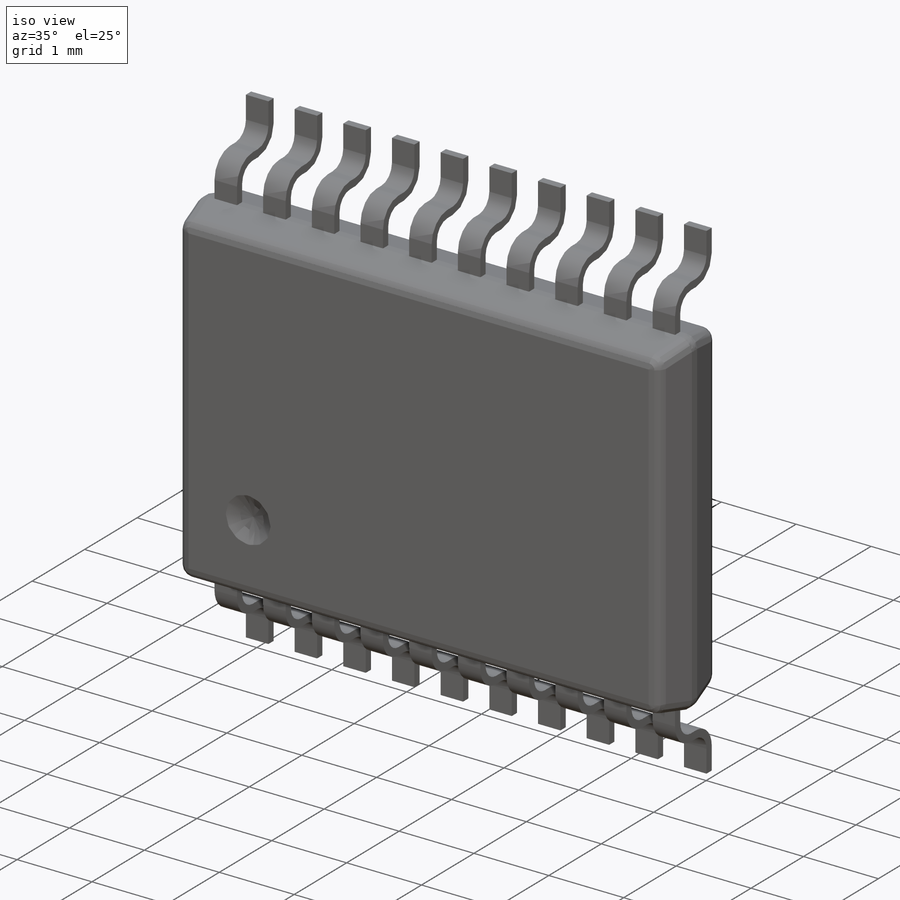
[diagram: iso view]
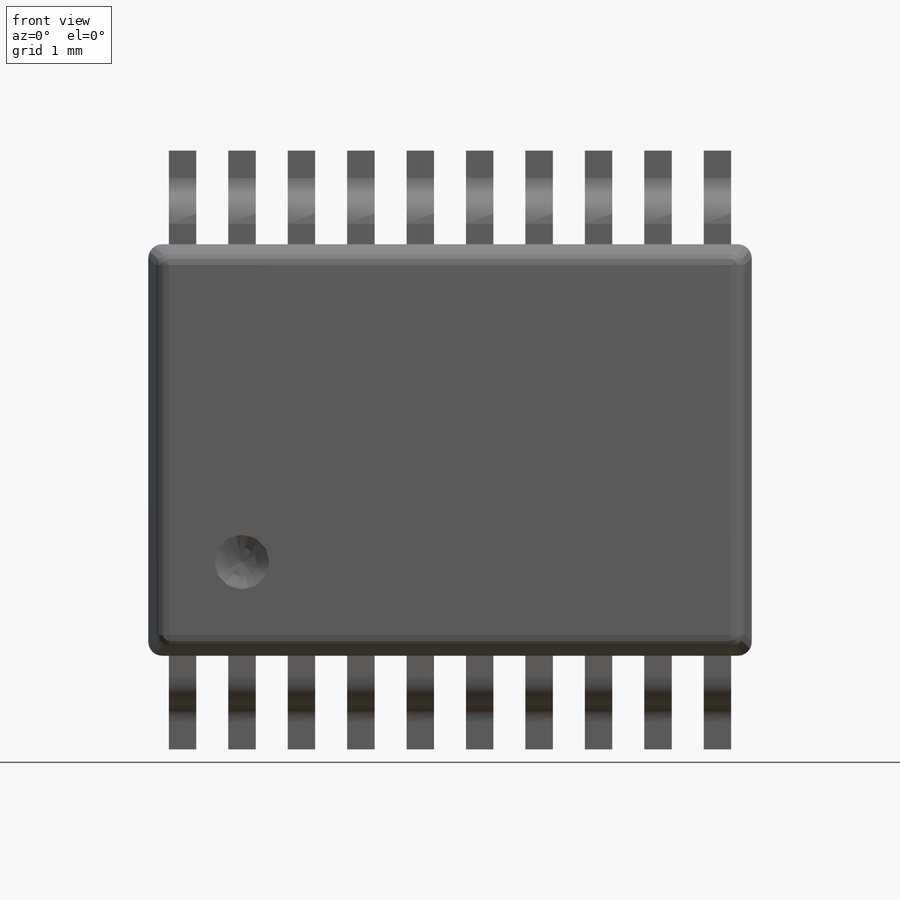
[diagram: front view]
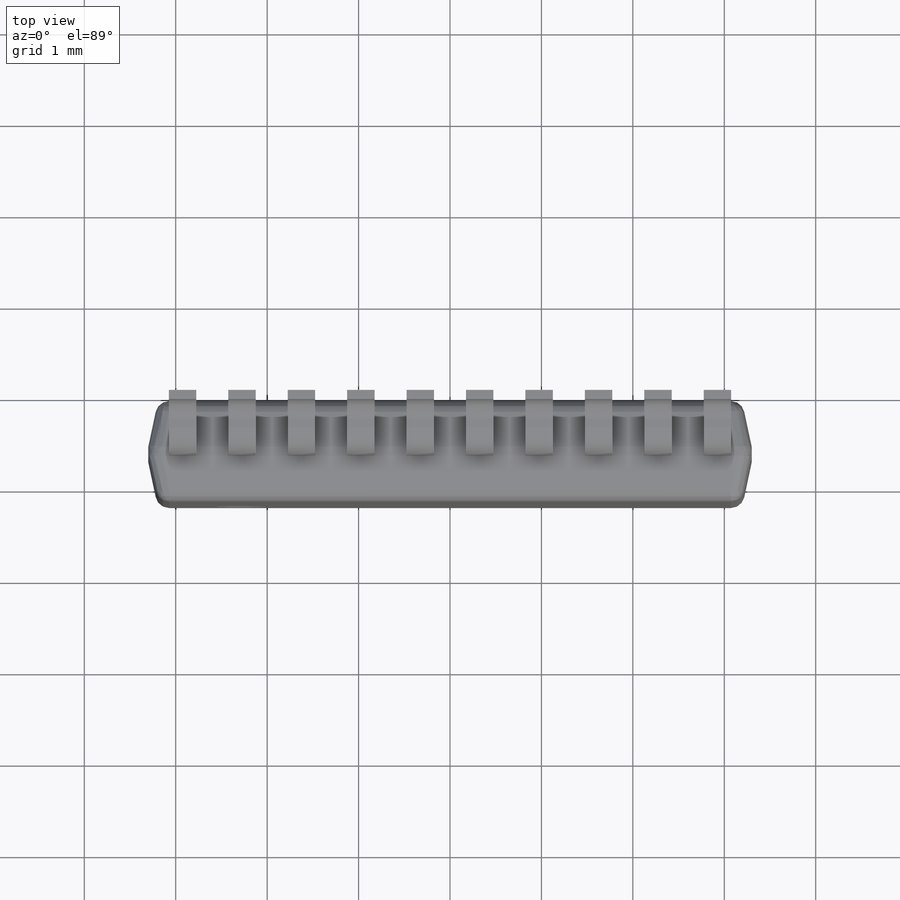
[diagram: top view]
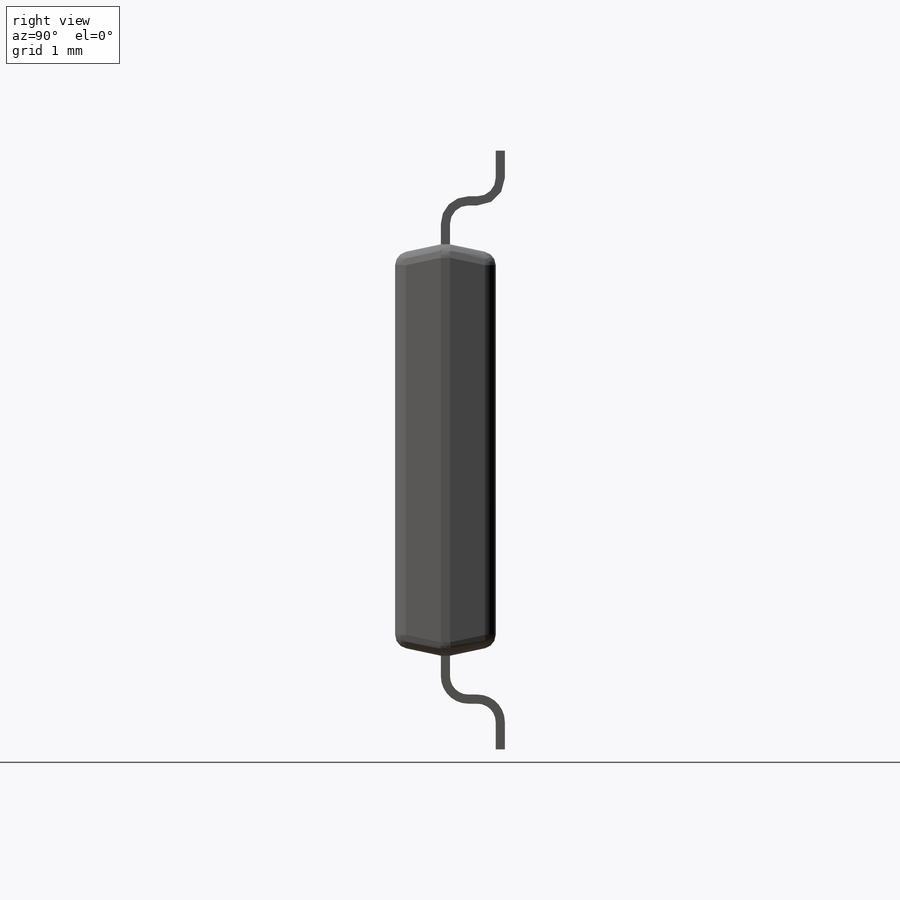
[diagram: right view]
SOLIDWORKS PART (.sldprt)
format: sldprt  version: not decoded by parser v0  size: 513,536 bytes
history: native  units: mm
features: sketch x4, extrude x2, chamfer x2, cut_extrude x2, material x1, plane x1, fillet x1, mirror x1, dome x1 (+16 scaffold rows collapsed)
feature tree (31):
  scaffold x16  (default folders/planes/origin — collapsed)
  material  "Material <not specified>"
  plane  "Plane1"  Offset=0.1mm
  sketch  "Sketch1"
  extrude  "Extrude2"  Depth=1.1mm
  chamfer  "Chamfer2"  Distance=0.5mm Angle=12deg
  chamfer  "Chamfer3"  Distance=0.5mm Angle=12deg
  fillet  "Fillet1"  Radius=0.15mm
  sketch  "Sketch2"  dims[D1=1.025mm]
  extrude  "Extrude3"  Depth=0.7mm
  sketch  "Sketch3"  dims[c1.D1=0.3mm c1.D3=0.3mm c2.D1=0.6mm c2.D2=0.1mm c2.D4=0.1mm]
  cut_extrude  "Extrude4"  [1 undecoded]
  mirror  "Mirror1"
  sketch  "Sketch4"  dims[D1=1.025mm]
  cut_extrude  "Extrude5"  Depth=0.001mm
  dome  "Dome1"
decode coverage: 9 of 13 modeling features carry decoded parameters
note: 1 parameter value undecoded
note: suppression state not decoded; provenance and decode notes live in map.json
